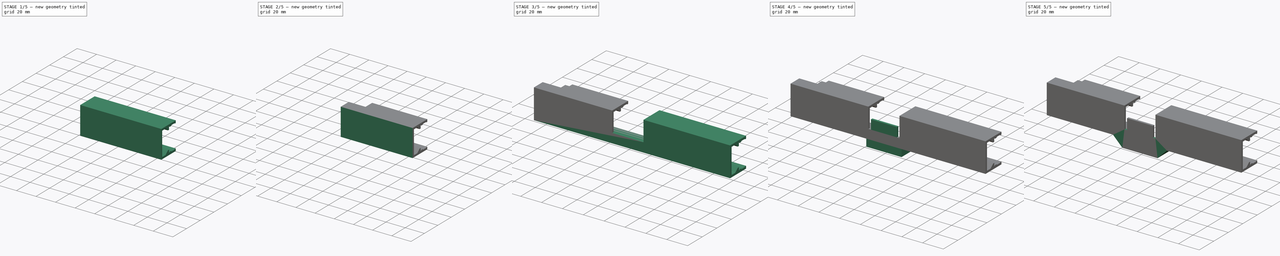
[diagram: build sequence overview — one tinted view per stage of 5, left to right]
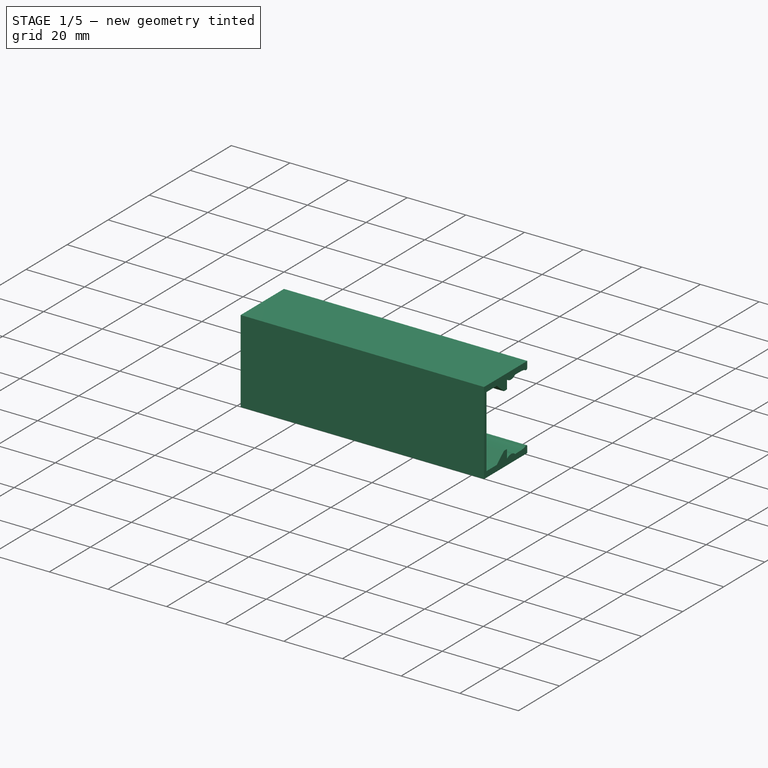
[diagram: stage 1 of 5 — iso view after this stage's code; geometry added in this stage tinted green]
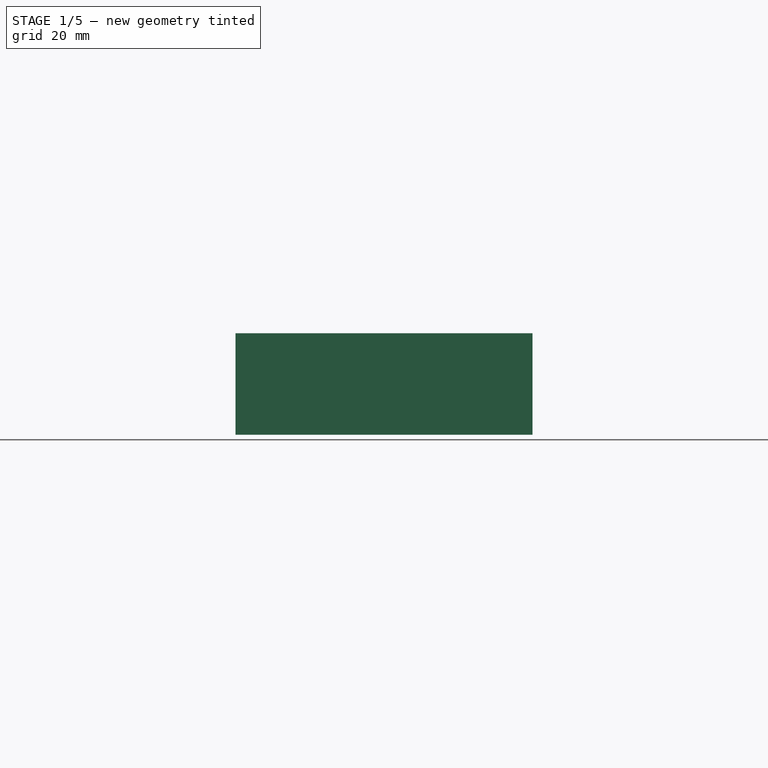
[diagram: stage 1 of 5 — front view after this stage's code; geometry added in this stage tinted green]
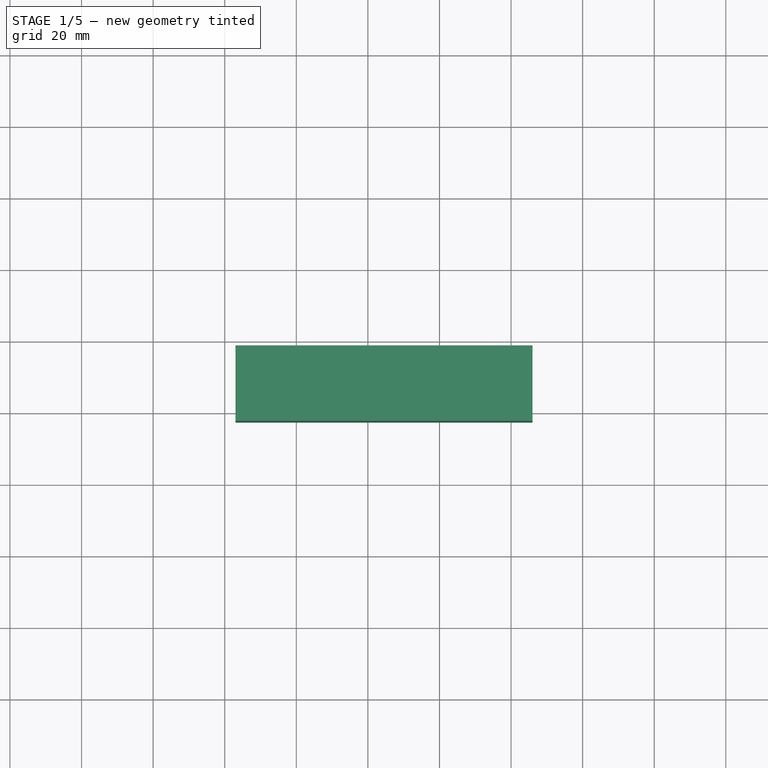
[diagram: stage 1 of 5 — top view after this stage's code; geometry added in this stage tinted green]
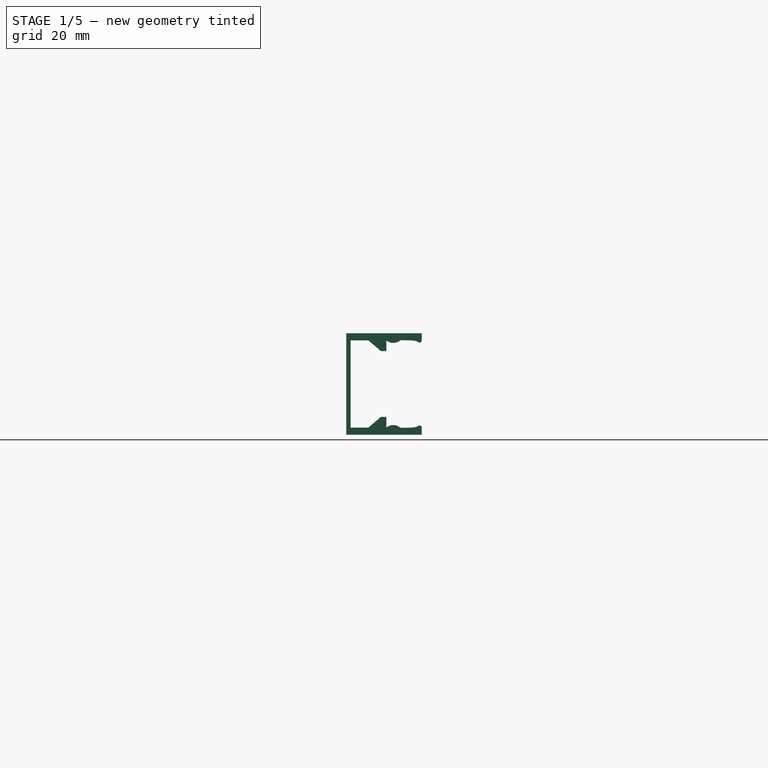
[diagram: stage 1 of 5 — right view after this stage's code; geometry added in this stage tinted green]
FCSTD DOCUMENT  (FreeCAD 1.0R38641 +468 (Git))
Label: k1_cable_cover_horizontal
License: All rights reserved
LicenseURL: https://en.wikipedia.org/wiki/All_rights_reserved
objects: Sketcher::SketchObject×13, PartDesign::Pad×10, PartDesign::Pocket×7, PartDesign::Plane×2, Part::Feature×1, PartDesign::FeatureBase×1, PartDesign::Body×1
note: 83 computed .brp shape members not serialized (recipe doc carries the construction recipe); baked Part::Feature solids carry a one-line shape summary decoded from their .brp

FEATURE [Part::Feature] Part__Feature  label="step"
  shape: bbox 83 x 21.01 x 26.88 mm, 461 faces (baked)
FEATURE [PartDesign::FeatureBase] BaseFeature
  BaseFeature = -> Part__Feature
  Suppressed = false
FEATURE [Sketcher::SketchObject] Sketch
  ArcFitTolerance = 1e-06
  AttachmentSupport = -> [BaseFeature]
  ExternalGeometry = -> [BaseFeature]
  FullyConstrained = true
  MakeInternals = false
  MapMode = 5
  Placement = pos=(-194,0,0) rot=(0.57735,0.57735,0.57735;2.0944rad)
  sketch-geometry (4):
    g0: LineSegment StartX=-711.319 StartY=10.4515 StartZ=0 EndX=-707.568 EndY=10.3469 EndZ=0
    g1: ArcOfCircle CenterX=-709.411 CenterY=11.5663 CenterZ=0 NormalX=0 NormalY=0 NormalZ=1 AngleXU=0 Radius=2.21 StartAngle=3.67036 EndAngle=5.69867
    g2: LineSegment StartX=-711.314 StartY=-16.4252 StartZ=0 EndX=-707.562 EndY=-16.3466 EndZ=0
    g3: ArcOfCircle CenterX=-709.417 CenterY=-17.373 CenterZ=0 NormalX=0 NormalY=0 NormalZ=1 AngleXU=0 Radius=2.12 StartAngle=0.505428 EndAngle=2.67806
  constraints (10):
    c: Coincident(g0,g-3)
    c: Coincident(g0,g-4)
    c: Coincident(g1,g0)
    c: Coincident(g1,g0)
    c: Radius(g1) = 2.21
    c: Coincident(g2,g-5)
    c: Coincident(g2,g-6)
    c: Coincident(g3,g2)
    c: Coincident(g3,g2)
    c: Radius(g3) = 2.12
FEATURE [PartDesign::Pad] Pad
  BaseFeature = -> BaseFeature
  Direction = (1,0,0)
  Length = 10
  Length2 = 10
  Profile = -> Sketch
  ReferenceAxis = -> Sketch [N_Axis]
  Refine = true
  Suppressed = false
  Type = 3
  UpToFace = -> BaseFeature [Face9]
FEATURE [Sketcher::SketchObject] Sketch001
  ArcFitTolerance = 1e-06
  AttachmentSupport = -> [Pad]
  ExternalGeometry = -> [Pad]
  FullyConstrained = true
  MakeInternals = false
  MapMode = 5
  Placement = pos=(-277,0,0) rot=(0.57735,-0.57735,-0.57735;2.0944rad)
  sketch-geometry (8):
    g0: LineSegment StartX=702.263 StartY=9.91787 StartZ=0 EndX=701.902 EndY=9.79651 EndZ=0
    g1: LineSegment StartX=702.574 StartY=8.86233 StartZ=0 EndX=702.894 EndY=8.95357 EndZ=0
    g2: LineSegment StartX=702.263 StartY=9.91787 StartZ=0 EndX=702.894 EndY=8.95357 EndZ=0
    g3: LineSegment StartX=701.896 StartY=-15.7962 StartZ=0 EndX=702.258 EndY=-15.9176 EndZ=0
    g4: LineSegment StartX=702.574 StartY=-14.8639 StartZ=0 EndX=702.893 EndY=-14.9551 EndZ=0
    g5: LineSegment StartX=702.258 StartY=-15.9176 StartZ=0 EndX=702.893 EndY=-14.9551 EndZ=0
    g6: ArcOfCircle CenterX=702.05 CenterY=-15.1956 CenterZ=0 NormalX=0 NormalY=0 NormalZ=1 AngleXU=0 Radius=0.62 StartAngle=0.564671 EndAngle=4.46131
    g7: ArcOfCircle CenterX=702.051 CenterY=9.19476 CenterZ=0 NormalX=0 NormalY=0 NormalZ=1 AngleXU=0 Radius=0.62 StartAngle=1.81402 EndAngle=5.7173
  constraints (18):
    c: Coincident(g0,g-4)
    c: Coincident(g0,g-4)
    c: Coincident(g1,g-3)
    c: Coincident(g1,g-3)
    c: Coincident(g2,g0)
    c: Coincident(g2,g1)
    c: Coincident(g3,g-6)
    c: Coincident(g3,g-6)
    c: Coincident(g4,g-5)
    c: Coincident(g4,g-5)
    c: Coincident(g5,g3)
    c: Coincident(g5,g4)
    c: Coincident(g6,g4)
    c: Coincident(g6,g3)
    c: Radius(g6) = 0.62
    c: Coincident(g7,g0)
    c: Coincident(g7,g1)
    c: Radius(g7) = 0.62
FEATURE [PartDesign::Pad] Pad001
  BaseFeature = -> Pad
  Direction = (-1,0,0)
  Length = 10
  Length2 = 10
  Profile = -> Sketch001
  ReferenceAxis = -> Sketch001 [N_Axis]
  Refine = true
  Suppressed = false
  Type = 3
  UpToFace = -> Pad [Face269]
FEATURE [Sketcher::SketchObject] Sketch002
  ArcFitTolerance = 1e-06
  AttachmentSupport = -> [Pad001]
  ExternalGeometry = -> [Pad001]
  FullyConstrained = true
  MakeInternals = false
  MapMode = 5
  Placement = pos=(-194,-9.51e-14,0) rot=(0.57735,0.57735,0.57735;2.0944rad)
  sketch-geometry (8):
    g0: LineSegment StartX=-701.431 StartY=9.19476 StartZ=0 EndX=-701.431 EndY=11.1948 EndZ=0
    g1: LineSegment StartX=-701.43 StartY=-15.1956 StartZ=0 EndX=-701.43 EndY=-17.1956 EndZ=0
    g2: LineSegment StartX=-701.431 StartY=11.1948 StartZ=0 EndX=-722.505 EndY=11.1948 EndZ=0
    g3: LineSegment StartX=-701.43 StartY=-17.1956 StartZ=0 EndX=-722.505 EndY=-17.1956 EndZ=0
    g4: LineSegment StartX=-722.505 StartY=-17.1956 StartZ=0 EndX=-722.505 EndY=11.1948 EndZ=0
    g5: LineSegment StartX=-701.431 StartY=9.19476 StartZ=0 EndX=-721.578 EndY=9.91231 EndZ=0
    g6: LineSegment StartX=-701.43 StartY=-15.1956 StartZ=0 EndX=-721.578 EndY=-15.8877 EndZ=0
    g7: LineSegment StartX=-721.578 StartY=9.91231 StartZ=0 EndX=-721.578 EndY=-15.8877 EndZ=0
  constraints (22):
    c: Vertical(g0)
    c: Vertical(g1)
    c: Coincident(g2,g0)
    c: Horizontal(g2)
    c: Coincident(g3,g1)
    c: Horizontal(g3)
    c: Coincident(g4,g3)
    c: Coincident(g4,g2)
    c: Vertical(g4)
    c: PointOnObject(g-5,g4)
    c: Tangent(g1,g-4) = 1.5708
    c: Tangent(g0,g-3) = -1.5708
    c: Equal(g0,g1)
    c: Coincident(g5,g0)
    c: Coincident(g6,g1)
    c: Coincident(g7,g5)
    c: Coincident(g7,g6)
    c: Vertical(g7)
    c: Equal(g6,g5)
    c: DistanceY(g7,g7) = 25.8
    c: Distance(g0,g0) = 2
    c: Distance(g5,g5) = 20.16
FEATURE [PartDesign::Pad] Pad002
  BaseFeature = -> Pad001
  Direction = (1,0,0)
  Length = 10
  Length2 = 10
  Profile = -> Sketch002
  ReferenceAxis = -> Sketch002 [N_Axis]
  Refine = true
  Suppressed = false
  Type = 3
  UpToFace = -> Pad001 [Face121]
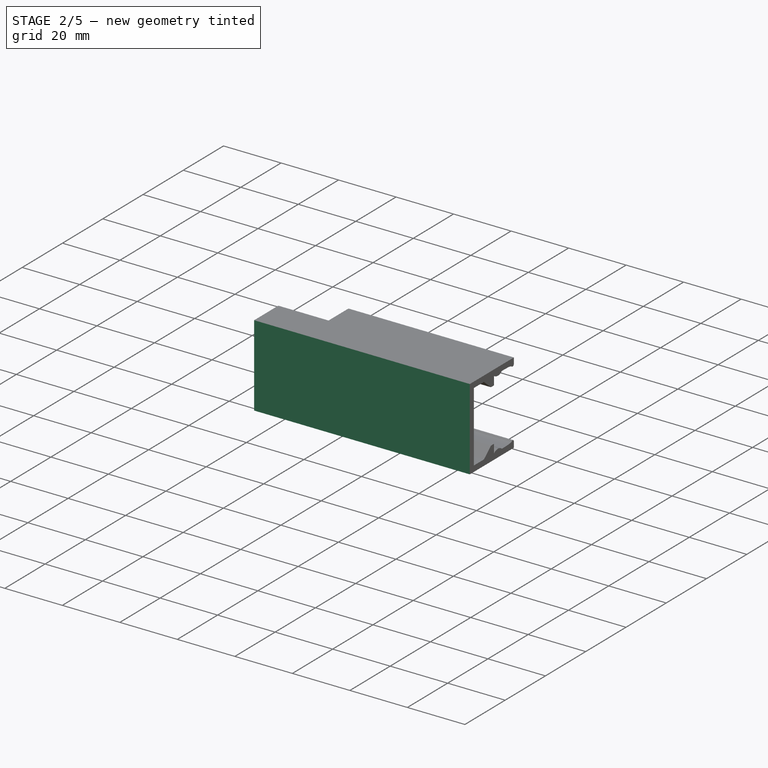
[diagram: stage 2 of 5 — iso view after this stage's code; geometry added in this stage tinted green]
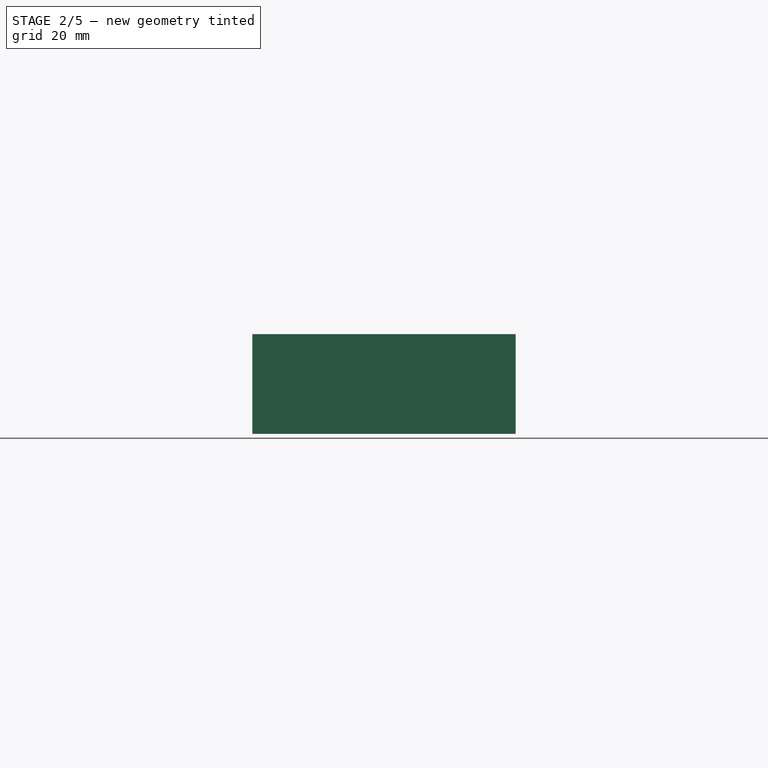
[diagram: stage 2 of 5 — front view after this stage's code; geometry added in this stage tinted green]
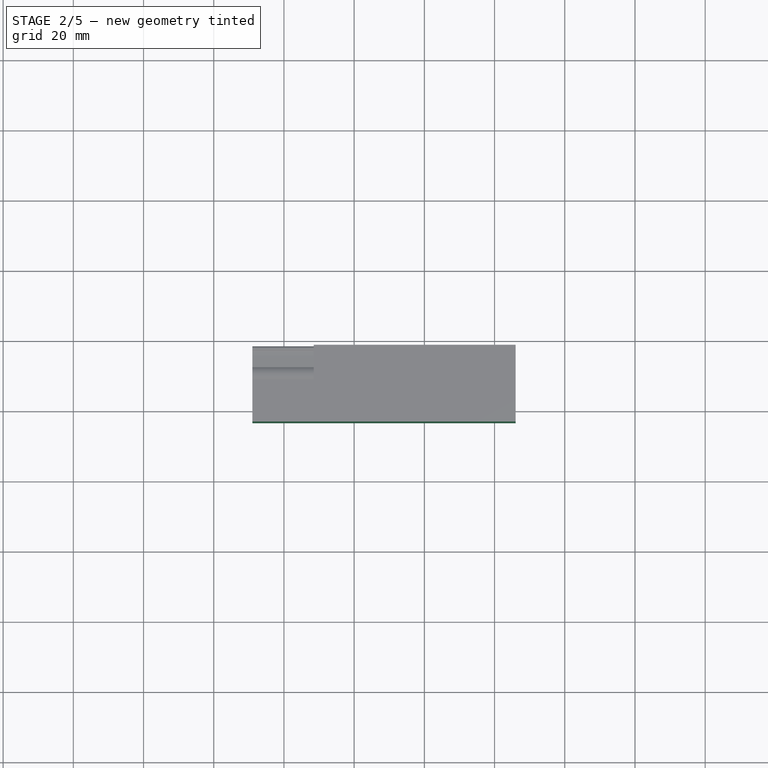
[diagram: stage 2 of 5 — top view after this stage's code; geometry added in this stage tinted green]
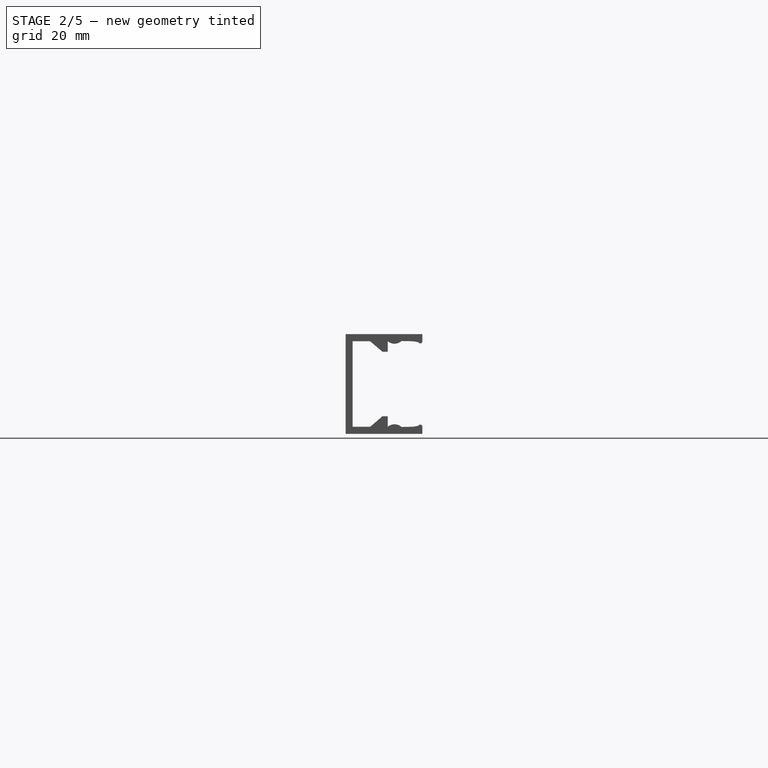
[diagram: stage 2 of 5 — right view after this stage's code; geometry added in this stage tinted green]
FEATURE [Sketcher::SketchObject] Sketch003
  ArcFitTolerance = 1e-06
  AttachmentSupport = -> [Pad002]
  ExternalGeometry = -> [Pad002]
  FullyConstrained = true
  MakeInternals = false
  MapMode = 5
  Placement = pos=(-277,7.811e-13,0) rot=(-0.57735,0.57735,0.57735;4.18879rad)
  constraints (2):
    c: Distance(g-3,g-4) = 2.01494
    c: Distance(g-3,g-5) = 1.20538
FEATURE [PartDesign::Pad] Pad003
  BaseFeature = -> Pad002
  Direction = (0,-1,0)
  Length = 0.8
  Length2 = 10
  Profile = -> Pad002 [Face92]
  Refine = true
  Suppressed = false
  Type = 0
FEATURE [PartDesign::Pocket] Pocket
  BaseFeature = -> Pad003
  Direction = (1,-2.6e-15,0)
  Length = 8
  Length2 = 5
  Profile = -> Pad003 [Face88]
  Refine = true
  Suppressed = false
  Type = 0
FEATURE [Sketcher::SketchObject] Sketch004
  ArcFitTolerance = 1e-06
  AttachmentSupport = -> [Pocket]
  ExternalGeometry = -> [Pocket]
  FullyConstrained = true
  MakeInternals = false
  MapMode = 5
  Placement = pos=(-269,6.94e-13,0) rot=(-0.57735,0.57735,0.57735;4.18879rad)
  sketch-geometry (4):
    g0: LineSegment StartX=711.314 StartY=12.8707 StartZ=0 EndX=700.094 EndY=12.8707 EndZ=0
    g1: LineSegment StartX=700.094 StartY=12.8707 StartZ=0 EndX=700.094 EndY=6.19072 EndZ=0
    g2: LineSegment StartX=700.094 StartY=6.19072 StartZ=0 EndX=711.314 EndY=6.19072 EndZ=0
    g3: LineSegment StartX=711.314 StartY=6.19072 StartZ=0 EndX=711.314 EndY=12.8707 EndZ=0
  constraints (11):
    c: Coincident(g0,g1)
    c: Coincident(g1,g2)
    c: Coincident(g2,g3)
    c: Coincident(g3,g0)
    c: Horizontal(g0)
    c: Horizontal(g2)
    c: Vertical(g1)
    c: Vertical(g3)
    c: Distance(g1,g1) = 6.68
    c: Distance(g0,g0) = 11.22
    c: Coincident(g2,g-3)
FEATURE [PartDesign::Pocket] Pocket001
  BaseFeature = -> Pocket
  Direction = (1,-2.7e-15,0)
  Length = 17.48
  Length2 = 5
  Profile = -> Sketch004
  ReferenceAxis = -> Sketch004 [N_Axis]
  Refine = true
  Suppressed = false
  Type = 0
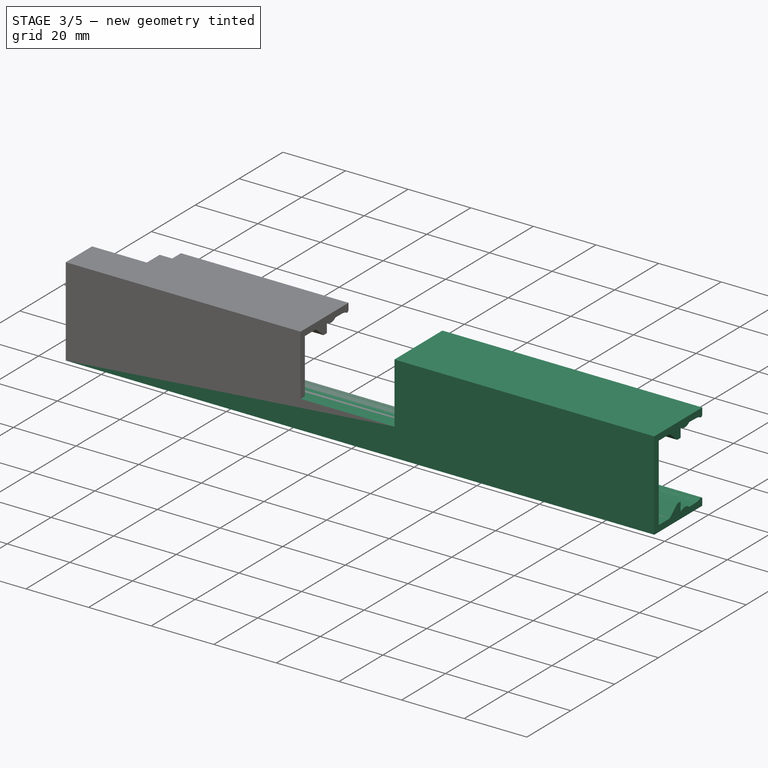
[diagram: stage 3 of 5 — iso view after this stage's code; geometry added in this stage tinted green]
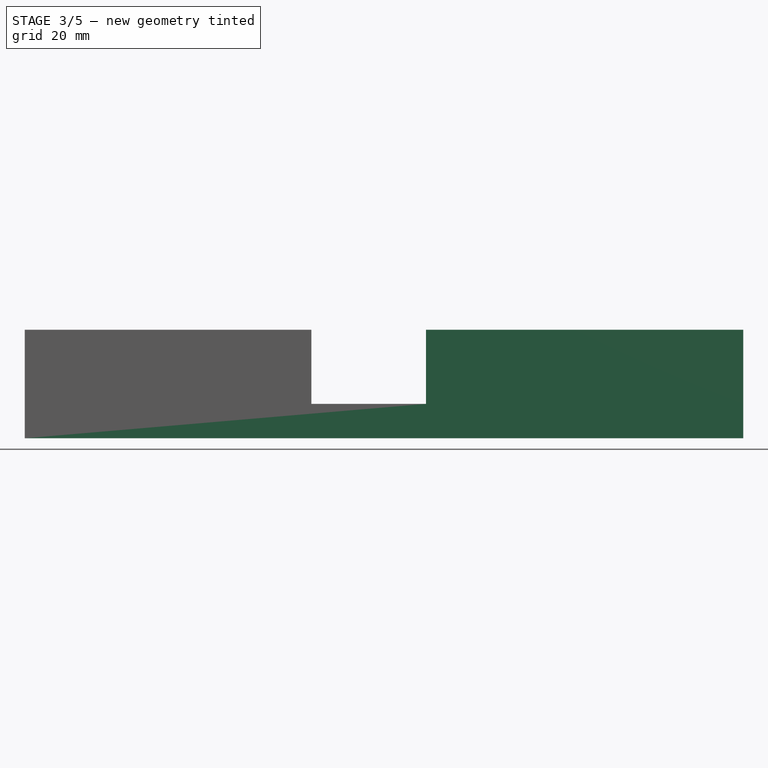
[diagram: stage 3 of 5 — front view after this stage's code; geometry added in this stage tinted green]
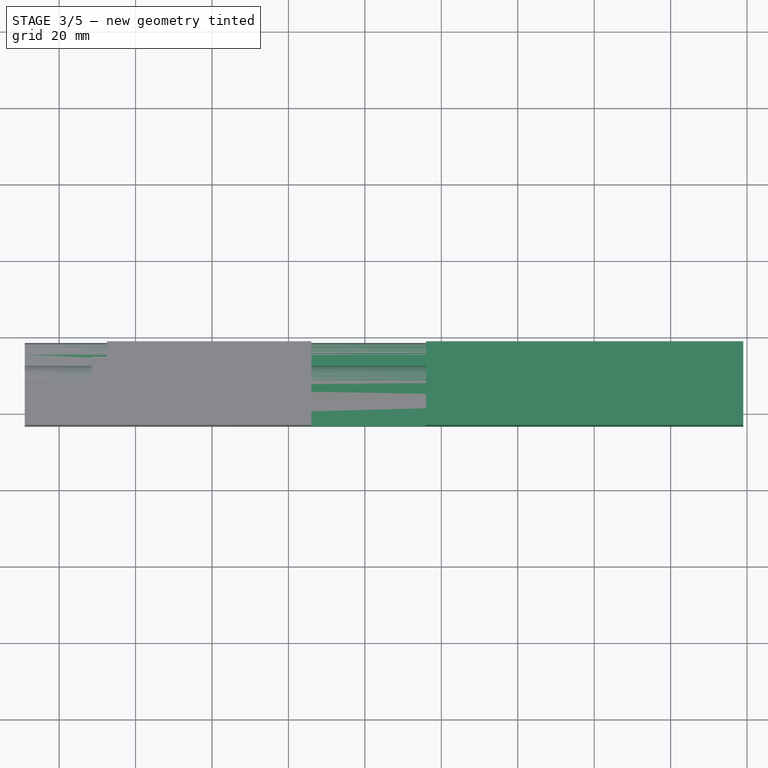
[diagram: stage 3 of 5 — top view after this stage's code; geometry added in this stage tinted green]
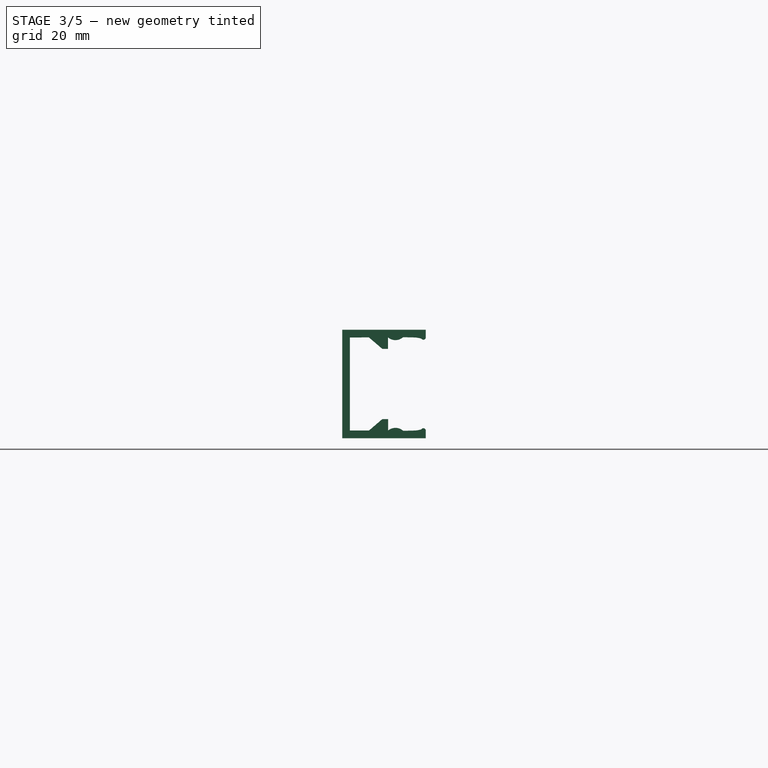
[diagram: stage 3 of 5 — right view after this stage's code; geometry added in this stage tinted green]
FEATURE [Sketcher::SketchObject] Sketch005
  ArcFitTolerance = 1e-06
  AttachmentSupport = -> [Pocket001]
  ExternalGeometry = -> [Pocket001]
  FullyConstrained = true
  MakeInternals = false
  MapMode = 5
  Placement = pos=(0,-701.431,0) rot=(0,0.707107,0.707107;3.14159rad)
  sketch-geometry (4):
    g0: LineSegment StartX=251.52 StartY=11.1948 StartZ=0 EndX=247.52 EndY=11.1948 EndZ=0
    g1: LineSegment StartX=247.52 StartY=11.1948 StartZ=0 EndX=247.52 EndY=5.53476 EndZ=0
    g2: LineSegment StartX=247.52 StartY=5.53476 StartZ=0 EndX=251.52 EndY=5.53476 EndZ=0
    g3: LineSegment StartX=251.52 StartY=5.53476 StartZ=0 EndX=251.52 EndY=11.1948 EndZ=0
  constraints (11):
    c: Coincident(g0,g1)
    c: Coincident(g1,g2)
    c: Coincident(g2,g3)
    c: Coincident(g3,g0)
    c: Horizontal(g0)
    c: Horizontal(g2)
    c: Vertical(g1)
    c: Vertical(g3)
    c: Coincident(g0,g-3)
    c: Distance(g1,g1) = 5.66
    c: Distance(g2,g2) = 4
FEATURE [PartDesign::Pocket] Pocket002
  BaseFeature = -> Pocket001
  Direction = (0,-1,2e-16)
  Length = 4
  Length2 = 5
  Profile = -> Sketch005
  ReferenceAxis = -> Sketch005 [N_Axis]
  Refine = true
  Suppressed = false
  Type = 0
FEATURE [PartDesign::Plane] DatumPlane
  AttachmentSupport = -> [Pocket002]
  Length = 787.451
  MapMode = 5
  Placement = pos=(-194,2.464e-13,0) rot=(0.57735,0.57735,0.57735;2.0944rad)
  ResizeMode = 0
  Width = 90.3415
FEATURE [PartDesign::Pad] Pad004
  BaseFeature = -> Pocket002
  Direction = (1,-1.3e-15,0)
  Length = 30
  Length2 = 10
  Profile = -> Pocket002 [Face2]
  Refine = true
  Suppressed = false
  Type = 0
FEATURE [PartDesign::Plane] DatumPlane001
  AttachmentSupport = -> [Pad004]
  Length = 787.451
  MapMode = 5
  Placement = pos=(-164,2.083e-13,0) rot=(0.57735,0.57735,0.57735;2.0944rad)
  ResizeMode = 0
  Width = 90.3415
FEATURE [PartDesign::Pad] Pad005
  BaseFeature = -> Pad004
  Direction = (1,-1.3e-15,0)
  Length = 83
  Length2 = 10
  Profile = -> Pad004 [Face4]
  Refine = true
  Suppressed = false
  Type = 0
FEATURE [Sketcher::SketchObject] Sketch006
  ArcFitTolerance = 1e-06
  AttachmentSupport = -> [Pad005]
  ExternalGeometry = -> [DatumPlane001,DatumPlane,Pad005]
  FullyConstrained = true
  MakeInternals = false
  MapMode = 5
  Placement = pos=(-7.233e-13,-723.305,0) rot=(1,0,0;1.5708rad)
  sketch-geometry (4):
    g0: LineSegment StartX=-164 StartY=-8.19564 StartZ=0 EndX=-164 EndY=11.1948 EndZ=0
    g1: LineSegment StartX=-164 StartY=11.1948 StartZ=0 EndX=-194 EndY=11.1948 EndZ=0
    g2: LineSegment StartX=-194 StartY=11.1948 StartZ=0 EndX=-194 EndY=-8.19564 EndZ=0
    g3: LineSegment StartX=-194 StartY=-8.19564 StartZ=0 EndX=-164 EndY=-8.19564 EndZ=0
  constraints (12):
    c: Coincident(g0,g1)
    c: Coincident(g1,g2)
    c: Coincident(g2,g3)
    c: Coincident(g3,g0)
    c: Vertical(g0)
    c: Vertical(g2)
    c: Horizontal(g1)
    c: Horizontal(g3)
    c: PointOnObject(g0,g-3)
    c: PointOnObject(g1,g-4)
    c: Distance(g0,g-5) = 9
    c: PointOnObject(g0,g-6)
FEATURE [PartDesign::Pocket] Pocket003
  BaseFeature = -> Pad005
  Direction = (0,1,-2e-16)
  Length = 5
  Length2 = 5
  Profile = -> Sketch006
  ReferenceAxis = -> Sketch006 [N_Axis]
  Refine = true
  Suppressed = false
  Type = 1
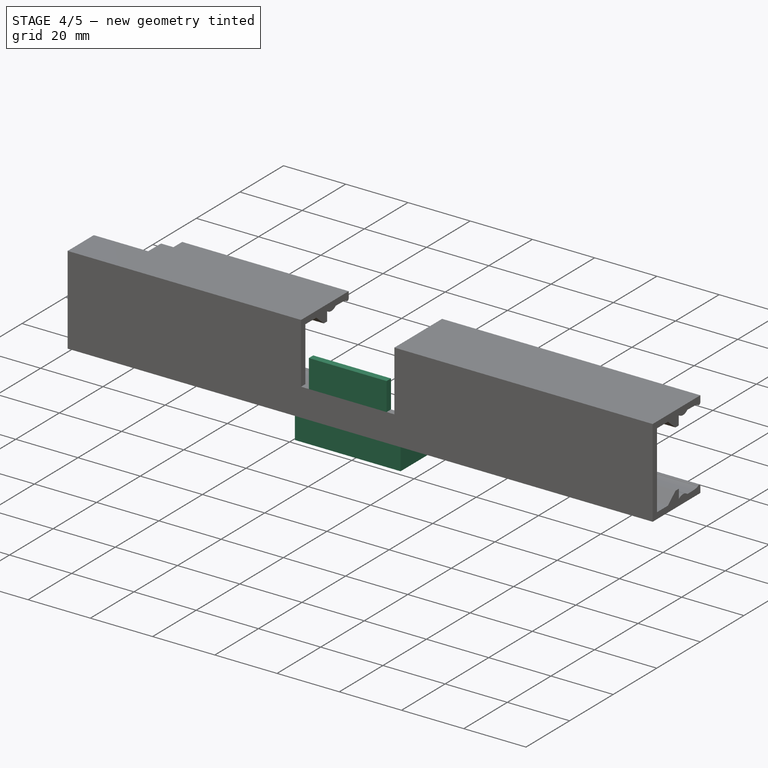
[diagram: stage 4 of 5 — iso view after this stage's code; geometry added in this stage tinted green]
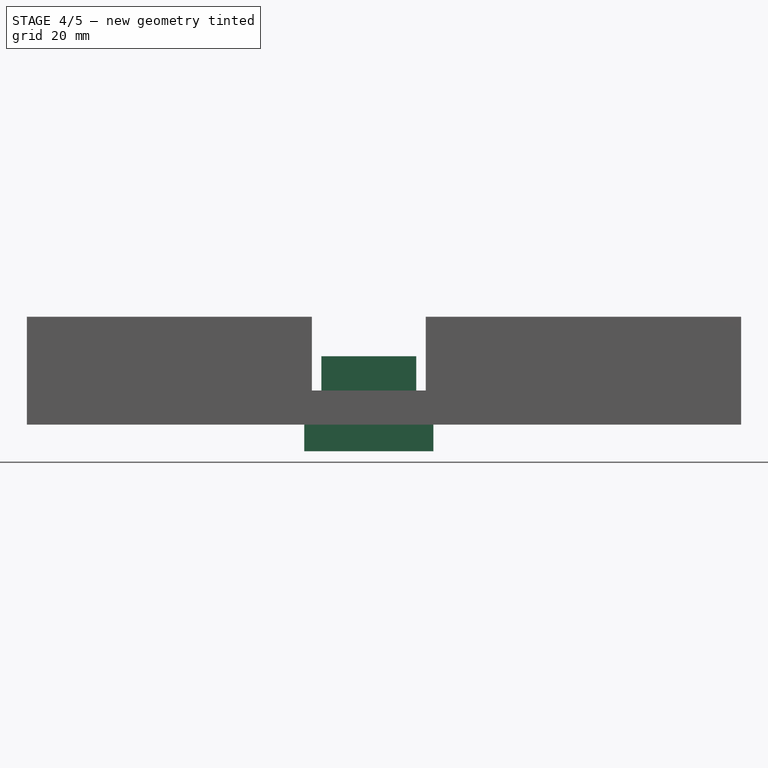
[diagram: stage 4 of 5 — front view after this stage's code; geometry added in this stage tinted green]
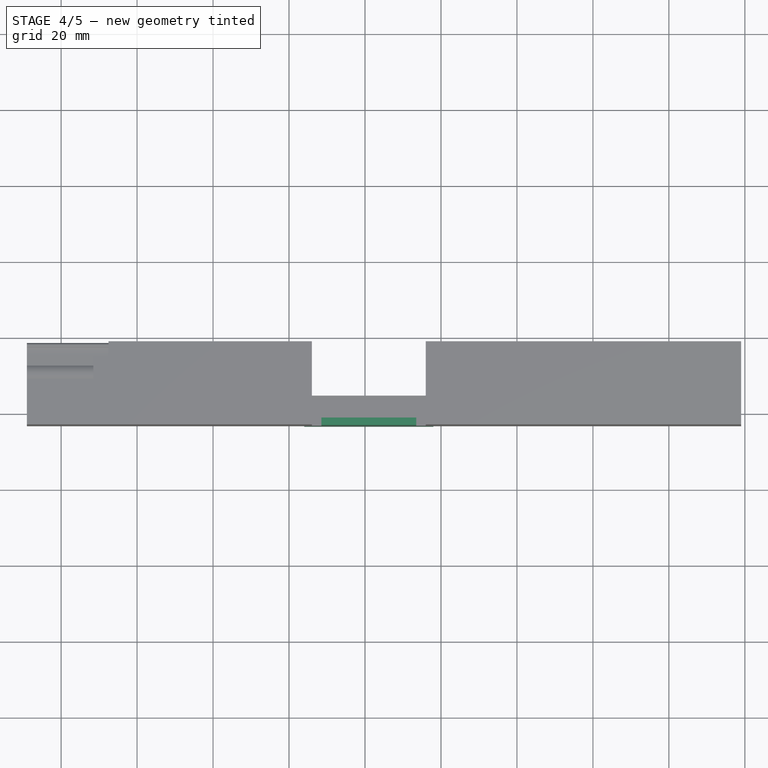
[diagram: stage 4 of 5 — top view after this stage's code; geometry added in this stage tinted green]
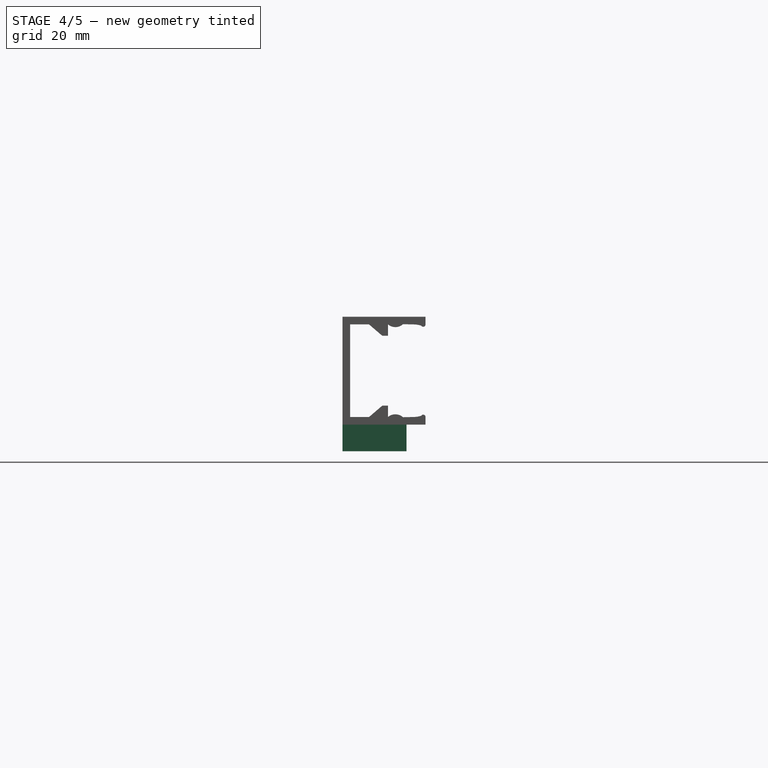
[diagram: stage 4 of 5 — right view after this stage's code; geometry added in this stage tinted green]
FEATURE [Sketcher::SketchObject] Sketch007
  ArcFitTolerance = 1e-06
  AttachmentSupport = -> [Pocket003]
  ExternalGeometry = -> [Pocket003,DatumPlane001,DatumPlane]
  FullyConstrained = true
  MakeInternals = false
  MapMode = 5
  Placement = pos=(0,0,-17.1956) rot=(1,0,0;3.14159rad)
  sketch-geometry (4):
    g0: LineSegment StartX=-164 StartY=701.43 StartZ=0 EndX=-164 EndY=715.305 EndZ=0
    g1: LineSegment StartX=-164 StartY=715.305 StartZ=0 EndX=-194 EndY=715.305 EndZ=0
    g2: LineSegment StartX=-194 StartY=715.305 StartZ=0 EndX=-194 EndY=701.43 EndZ=0
    g3: LineSegment StartX=-194 StartY=701.43 StartZ=0 EndX=-164 EndY=701.43 EndZ=0
  constraints (12):
    c: Coincident(g0,g1)
    c: Coincident(g1,g2)
    c: Coincident(g2,g3)
    c: Coincident(g3,g0)
    c: Vertical(g0)
    c: Vertical(g2)
    c: Horizontal(g1)
    c: Horizontal(g3)
    c: PointOnObject(g0,g-6)
    c: PointOnObject(g1,g-5)
    c: PointOnObject(g0,g-4)
    c: Distance(g0,g-3) = 8
FEATURE [PartDesign::Pocket] Pocket004
  BaseFeature = -> Pocket003
  Direction = (0,0,1)
  Length = 10
  Length2 = 5
  Profile = -> Sketch007
  ReferenceAxis = -> Sketch007 [N_Axis]
  Refine = true
  Suppressed = false
  Type = 0
FEATURE [Sketcher::SketchObject] Sketch008
  ArcFitTolerance = 1e-06
  AttachmentSupport = -> [Pocket004]
  ExternalGeometry = -> [Pocket004]
  FullyConstrained = true
  MakeInternals = false
  MapMode = 5
  Placement = pos=(0,-1.8e-15,-8.19564) rot=(0,0,1;0rad)
  sketch-geometry (4):
    g0: LineSegment StartX=-191.5 StartY=-721.3 StartZ=0 EndX=-191.5 EndY=-723.305 EndZ=0
    g1: LineSegment StartX=-191.5 StartY=-723.305 StartZ=0 EndX=-166.5 EndY=-723.305 EndZ=0
    g2: LineSegment StartX=-166.5 StartY=-723.305 StartZ=0 EndX=-166.5 EndY=-721.3 EndZ=0
    g3: LineSegment StartX=-166.5 StartY=-721.3 StartZ=0 EndX=-191.5 EndY=-721.3 EndZ=0
  constraints (12):
    c: Coincident(g0,g1)
    c: Coincident(g1,g2)
    c: Coincident(g2,g3)
    c: Coincident(g3,g0)
    c: Vertical(g0)
    c: Vertical(g2)
    c: Horizontal(g1)
    c: Horizontal(g3)
    c: PointOnObject(g0,g-6)
    c: PointOnObject(g1,g-5)
    c: Distance(g1,g1) = 25
    c: Distance(g0,g-6) = 2.5
FEATURE [PartDesign::Pad] Pad006
  BaseFeature = -> Pocket004
  Direction = (0,0,1)
  Length = 9
  Length2 = 10
  Profile = -> Sketch008
  ReferenceAxis = -> Sketch008 [N_Axis]
  Refine = true
  Suppressed = false
  Type = 0
FEATURE [Sketcher::SketchObject] Sketch009
  ArcFitTolerance = 1e-06
  AttachmentSupport = -> [Pad006]
  ExternalGeometry = -> [Pad006]
  FullyConstrained = true
  MakeInternals = false
  MapMode = 5
  Placement = pos=(0,0,-17.1956) rot=(1,0,0;3.14159rad)
  sketch-geometry (8):
    g0: LineSegment StartX=-164 StartY=706.43 StartZ=0 EndX=-162 EndY=706.43 EndZ=0
    g1: LineSegment StartX=-194 StartY=706.43 StartZ=0 EndX=-196 EndY=706.43 EndZ=0
    g2: LineSegment StartX=-162 StartY=706.43 StartZ=0 EndX=-162 EndY=723.305 EndZ=0
    g3: LineSegment StartX=-162 StartY=723.305 StartZ=0 EndX=-196 EndY=723.305 EndZ=0
    g4: LineSegment StartX=-196 StartY=723.305 StartZ=0 EndX=-196 EndY=706.43 EndZ=0
    g5: LineSegment StartX=-164 StartY=706.43 StartZ=0 EndX=-164 EndY=715.305 EndZ=0
    g6: LineSegment StartX=-194 StartY=706.43 StartZ=0 EndX=-194 EndY=715.305 EndZ=0
    g7: LineSegment StartX=-194 StartY=715.305 StartZ=0 EndX=-164 EndY=715.305 EndZ=0
  constraints (22):
    c: PointOnObject(g0,g-3)
    c: Horizontal(g0)
    c: PointOnObject(g1,g-4)
    c: Horizontal(g1)
    c: Coincident(g2,g0)
    c: PointOnObject(g2,g-5)
    c: Vertical(g2)
    c: Coincident(g3,g2)
    c: PointOnObject(g3,g-5)
    c: Coincident(g4,g3)
    c: Coincident(g4,g1)
    c: Vertical(g4)
    c: Coincident(g5,g0)
    c: Coincident(g5,g-3)
    c: Coincident(g6,g1)
    c: Coincident(g6,g-4)
    c: Coincident(g7,g6)
    c: Coincident(g7,g5)
    c: Equal(g0,g1)
    c: Distance(g0,g-3) = 5
    c: Equal(g6,g5)
    c: Distance(g0,g0) = 2
FEATURE [PartDesign::Pad] Pad007
  BaseFeature = -> Pad006
  Direction = (0,0,-1)
  Length = 7
  Length2 = 10
  Profile = -> Sketch009
  ReferenceAxis = -> Sketch009 [N_Axis]
  Refine = true
  Suppressed = false
  Type = 0
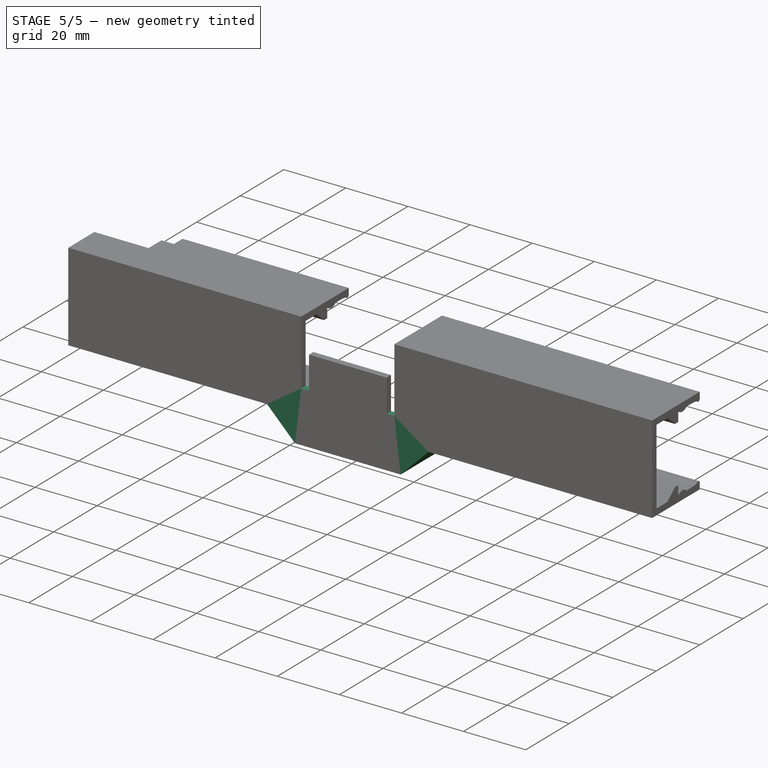
[diagram: stage 5 of 5 — iso view after this stage's code; geometry added in this stage tinted green]
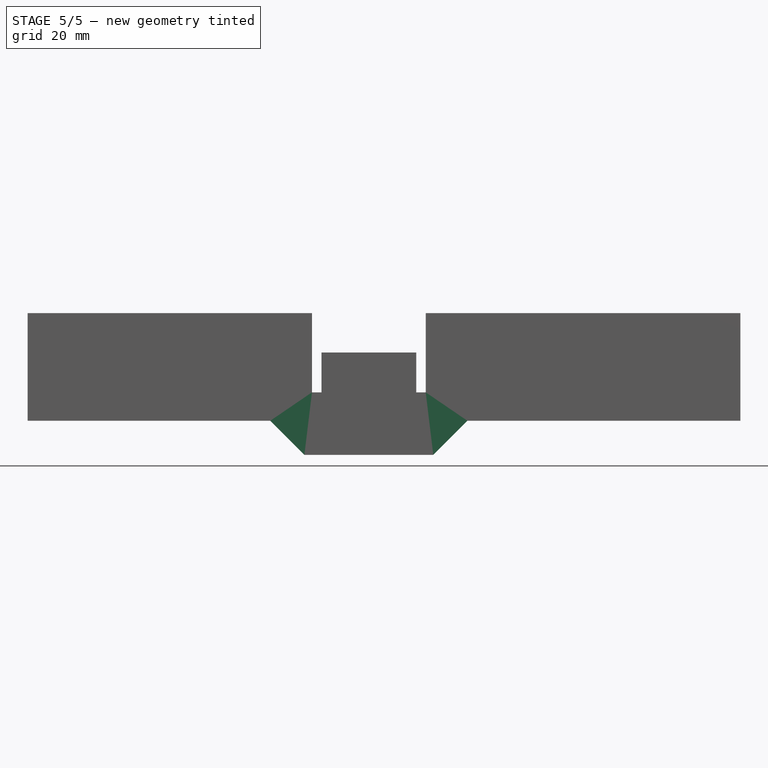
[diagram: stage 5 of 5 — front view after this stage's code; geometry added in this stage tinted green]
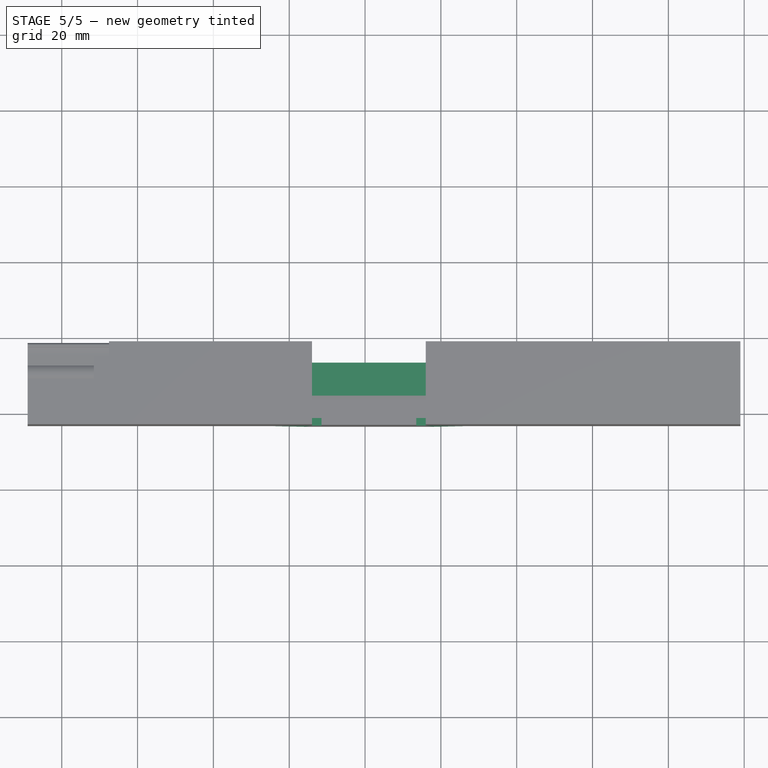
[diagram: stage 5 of 5 — top view after this stage's code; geometry added in this stage tinted green]
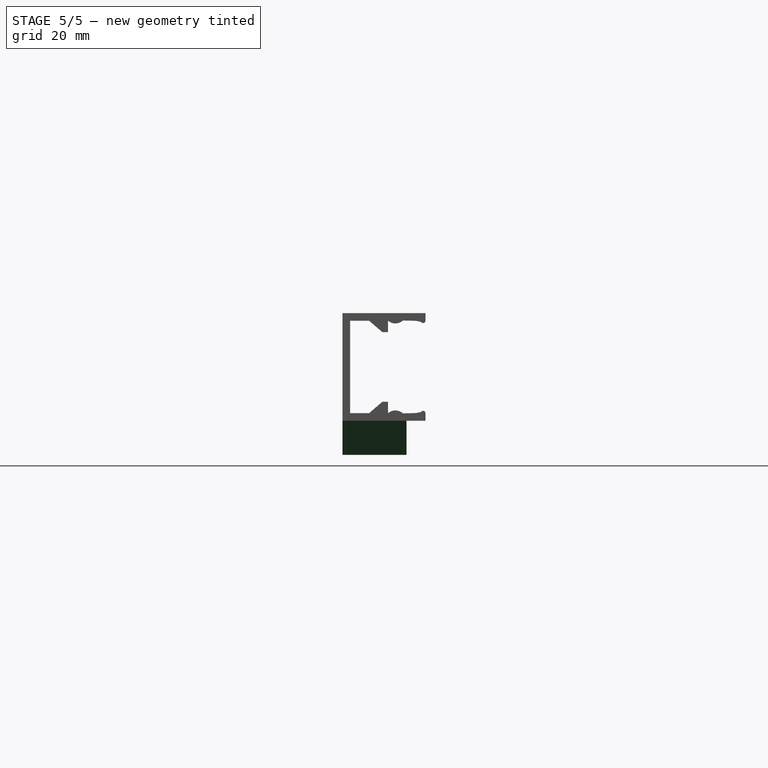
[diagram: stage 5 of 5 — right view after this stage's code; geometry added in this stage tinted green]
FEATURE [Sketcher::SketchObject] Sketch010
  ArcFitTolerance = 1e-06
  AttachmentSupport = -> [Pad007]
  ExternalGeometry = -> [Pad007]
  FullyConstrained = true
  MakeInternals = false
  MapMode = 5
  Placement = pos=(0,0,-24.1956) rot=(1,0,0;3.14159rad)
  sketch-geometry (4):
    g0: LineSegment StartX=-196 StartY=723.305 StartZ=0 EndX=-196 EndY=706.43 EndZ=0
    g1: LineSegment StartX=-196 StartY=706.43 StartZ=0 EndX=-162 EndY=706.43 EndZ=0
    g2: LineSegment StartX=-162 StartY=706.43 StartZ=0 EndX=-162 EndY=723.305 EndZ=0
    g3: LineSegment StartX=-162 StartY=723.305 StartZ=0 EndX=-196 EndY=723.305 EndZ=0
  constraints (10):
    c: Coincident(g0,g1)
    c: Coincident(g1,g2)
    c: Coincident(g2,g3)
    c: Coincident(g3,g0)
    c: Vertical(g0)
    c: Vertical(g2)
    c: Horizontal(g1)
    c: Horizontal(g3)
    c: Coincident(g0,g-3)
    c: Coincident(g1,g-4)
FEATURE [PartDesign::Pad] Pad008
  BaseFeature = -> Pad007
  Direction = (0,0,-1)
  Length = 2
  Length2 = 10
  Profile = -> Sketch010
  ReferenceAxis = -> Sketch010 [N_Axis]
  Refine = true
  Suppressed = false
  Type = 0
FEATURE [PartDesign::Pocket] Pocket005
  BaseFeature = -> Pad008
  Direction = (0,-2e-16,-1)
  Length = 1.5
  Length2 = 5
  Profile = -> Pad008 [Face8,Face1]
  Refine = true
  Suppressed = false
  Type = 0
FEATURE [Sketcher::SketchObject] Sketch011
  ArcFitTolerance = 1e-06
  AttachmentSupport = -> [Pocket005]
  ExternalGeometry = -> [Pocket005]
  FullyConstrained = true
  MakeInternals = false
  MapMode = 5
  Placement = pos=(0,-723.305,-1.0054e-12) rot=(1,0,0;1.5708rad)
  sketch-geometry (6):
    g0: ArcOfCircle CenterX=-196 CenterY=-17.1956 CenterZ=0 NormalX=0 NormalY=0 NormalZ=1 AngleXU=0 Radius=9 StartAngle=3.14159 EndAngle=4.71239
    g1: ArcOfCircle CenterX=-162 CenterY=-17.1956 CenterZ=0 NormalX=0 NormalY=0 NormalZ=1 AngleXU=0 Radius=9 StartAngle=4.71239 EndAngle=6.28319
    g2: LineSegment StartX=-205 StartY=-17.1956 StartZ=0 EndX=-196 EndY=-17.1956 EndZ=0
    g3: LineSegment StartX=-196 StartY=-17.1956 StartZ=0 EndX=-196 EndY=-26.1956 EndZ=0
    g4: LineSegment StartX=-162 StartY=-26.1956 StartZ=0 EndX=-162 EndY=-17.1956 EndZ=0
    g5: LineSegment StartX=-153 StartY=-17.1956 StartZ=0 EndX=-162 EndY=-17.1956 EndZ=0
  constraints (14):
    c: Coincident(g0,g-5)
    c: Coincident(g0,g-3)
    c: PointOnObject(g0,g-5)
    c: Coincident(g1,g-3)
    c: PointOnObject(g1,g-4)
    c: Coincident(g1,g-4)
    c: Coincident(g2,g0)
    c: Coincident(g2,g0)
    c: Coincident(g3,g0)
    c: Coincident(g3,g0)
    c: Coincident(g4,g1)
    c: Coincident(g4,g1)
    c: Coincident(g5,g1)
    c: Coincident(g5,g1)
FEATURE [PartDesign::Pad] Pad009
  BaseFeature = -> Pocket005
  Direction = (0,-1,-1.4e-15)
  Length = 10
  Length2 = 10
  Profile = -> Sketch011
  ReferenceAxis = -> Sketch011 [N_Axis]
  Refine = true
  Suppressed = false
  Type = 3
  UpToFace = -> Pocket005 [Face184]
FEATURE [Sketcher::SketchObject] Sketch012
  ArcFitTolerance = 1e-06
  AttachmentSupport = -> [Pad009]
  ExternalGeometry = -> [Pad009]
  FullyConstrained = true
  MakeInternals = false
  MapMode = 5
  Placement = pos=(0,-723.305,-9.114e-13) rot=(1,0,0;1.5708rad)
  sketch-geometry (6):
    g0: LineSegment StartX=-205 StartY=-17.1956 StartZ=0 EndX=-196 EndY=-26.1956 EndZ=0
    g1: LineSegment StartX=-153 StartY=-17.1956 StartZ=0 EndX=-162 EndY=-26.1956 EndZ=0
    g2: LineSegment StartX=-153 StartY=-17.1956 StartZ=0 EndX=-153 EndY=-26.1956 EndZ=0
    g3: LineSegment StartX=-153 StartY=-26.1956 StartZ=0 EndX=-162 EndY=-26.1956 EndZ=0
    g4: LineSegment StartX=-205 StartY=-17.1956 StartZ=0 EndX=-205 EndY=-26.1956 EndZ=0
    g5: LineSegment StartX=-196 StartY=-26.1956 StartZ=0 EndX=-205 EndY=-26.1956 EndZ=0
  constraints (14):
    c: Coincident(g0,g-5)
    c: Coincident(g0,g-3)
    c: Coincident(g1,g-4)
    c: Coincident(g1,g-3)
    c: Coincident(g2,g1)
    c: Vertical(g2)
    c: Coincident(g3,g2)
    c: Coincident(g3,g1)
    c: Horizontal(g3)
    c: Coincident(g4,g0)
    c: Vertical(g4)
    c: Coincident(g5,g0)
    c: Coincident(g5,g4)
    c: Horizontal(g5)
FEATURE [PartDesign::Pocket] Pocket006
  BaseFeature = -> Pad009
  Direction = (0,1,1.1e-15)
  Length = 5
  Length2 = 5
  Profile = -> Sketch012
  ReferenceAxis = -> Sketch012 [N_Axis]
  Refine = true
  Suppressed = false
  Type = 1
FEATURE [PartDesign::Body] Body  label="k1_cable_cover_horizontal"
  AllowCompound = false
  BaseFeature = -> Part__Feature
  Group = -> [BaseFeature,Sketch,Pad,Sketch001,Pad001,Sketch002,Pad002,Sketch003,Pad003,Pocket,Sketch004,Pocket001,Sketch005,Pocket002,DatumPlane,Pad004,DatumPlane001,Pad005,Sketch006,Pocket003,Sketch007,Pocket004,Sketch008,Pad006,Sketch009,Pad007,Sketch010,Pad008,Pocket005,Sketch011,Pad009,Sketch012,Pocket006]
  Origin = -> Origin
  Placement = pos=(269,724,17) rot=(0,0,1;0rad)
  Tip = -> Pocket006
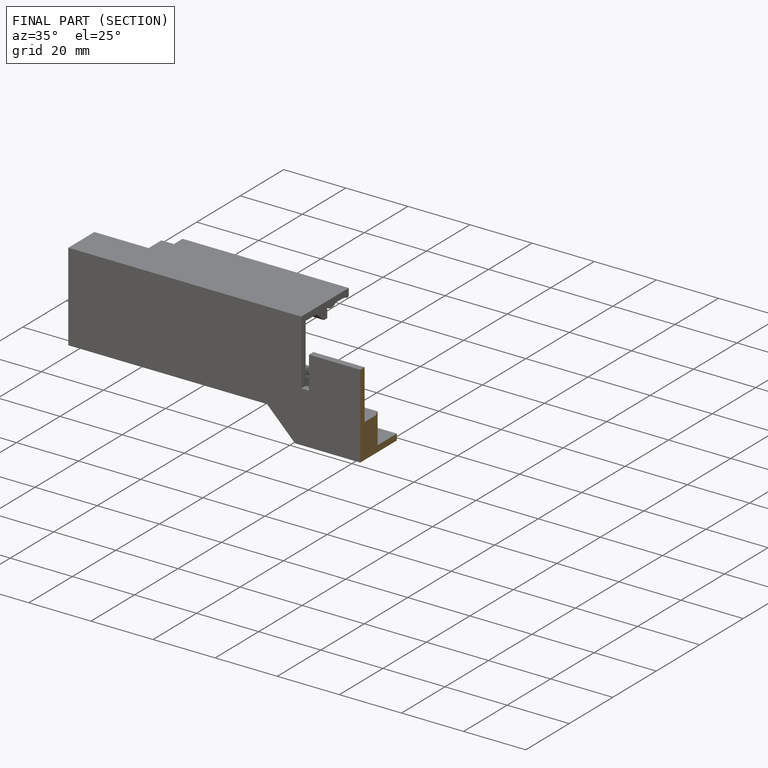
[diagram: finished part — half-section view (interior)]
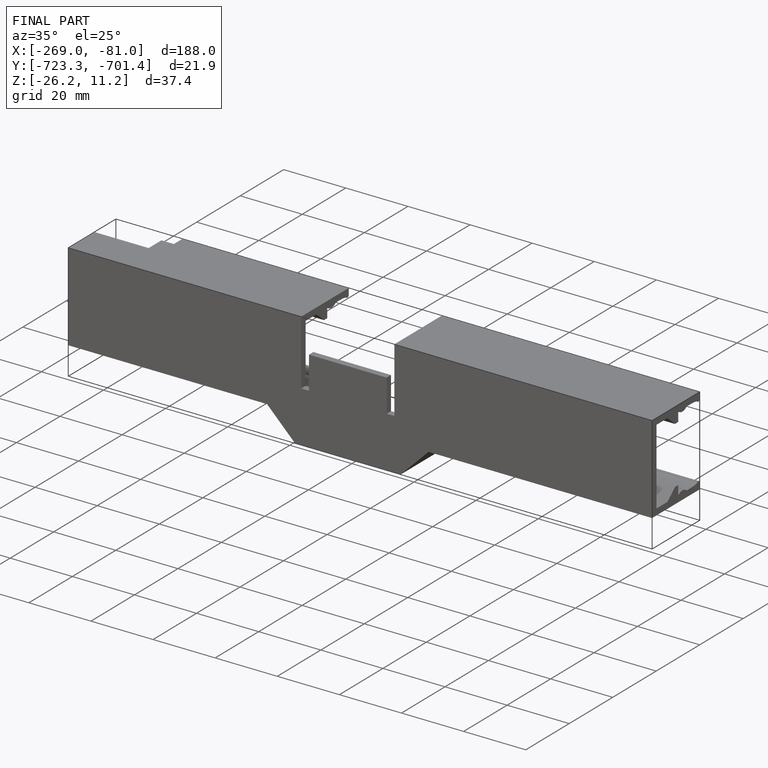
[diagram: finished part — iso view with bounding-box wireframe]
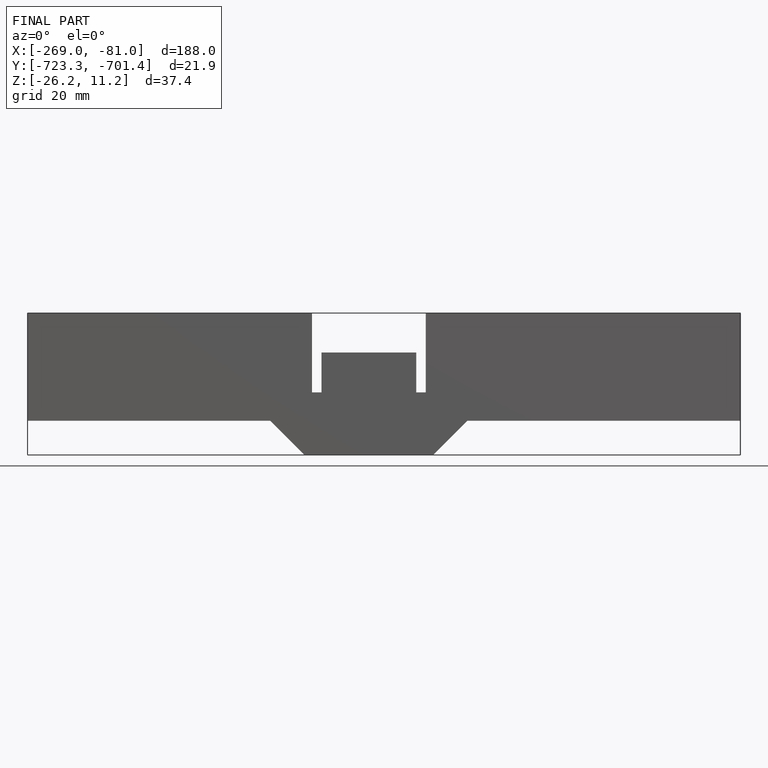
[diagram: finished part — front view with bounding-box wireframe]
